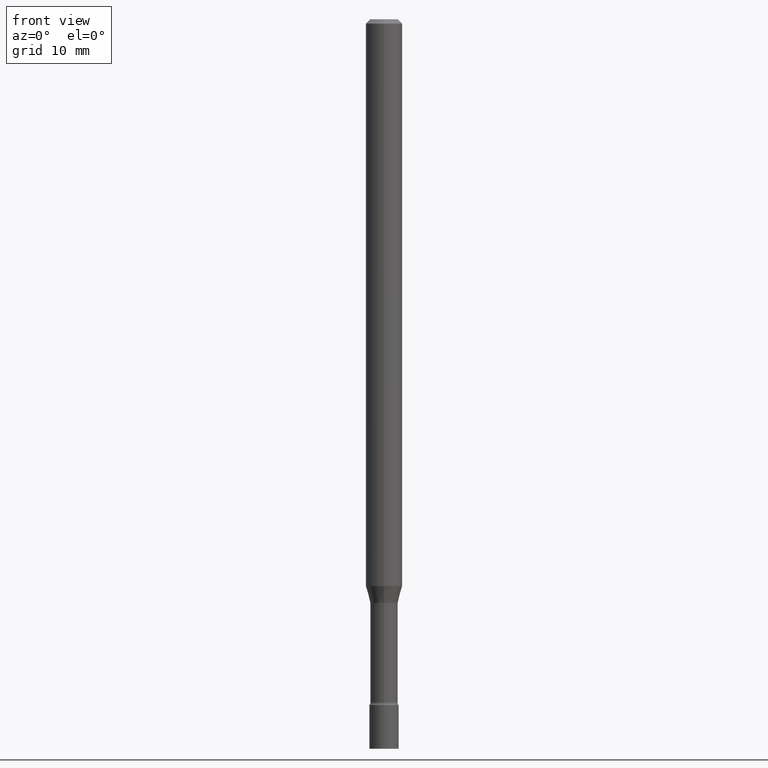
[diagram: clean part render]
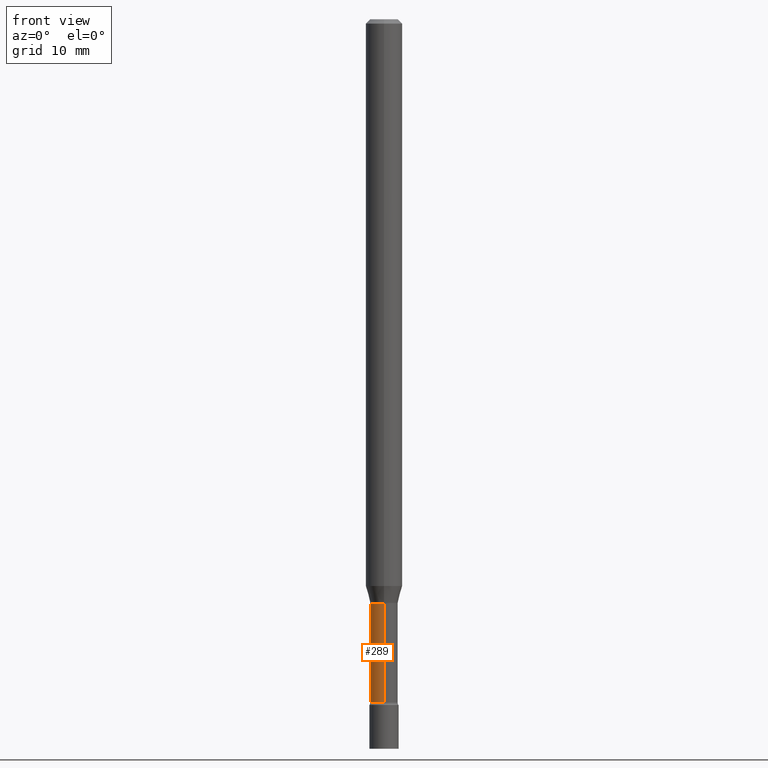
[diagram: same view with one face highlighted and labeled with its STEP entity id]
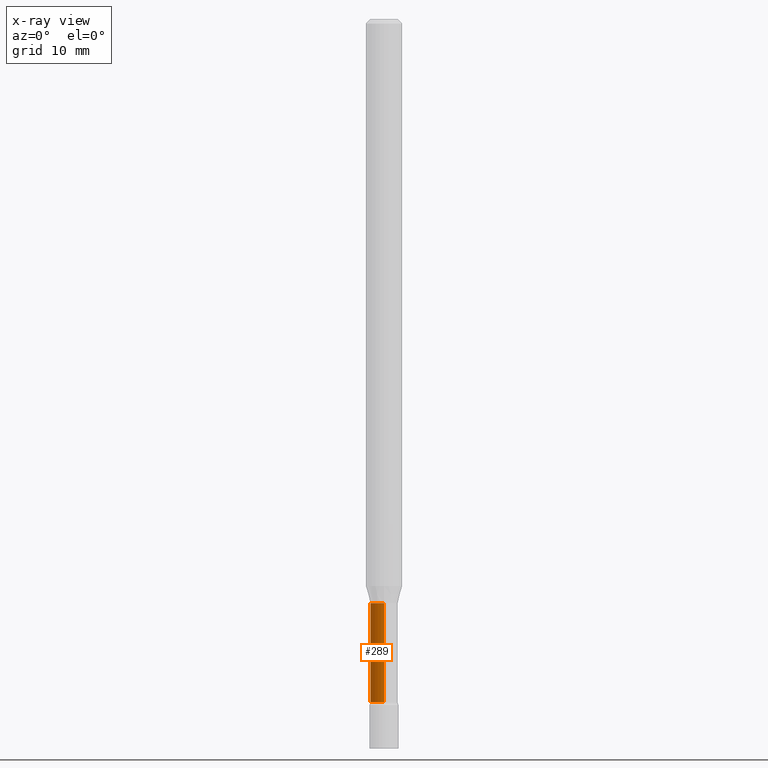
[diagram: x-ray of the same camera — body ghosted, the highlighted face saturated]
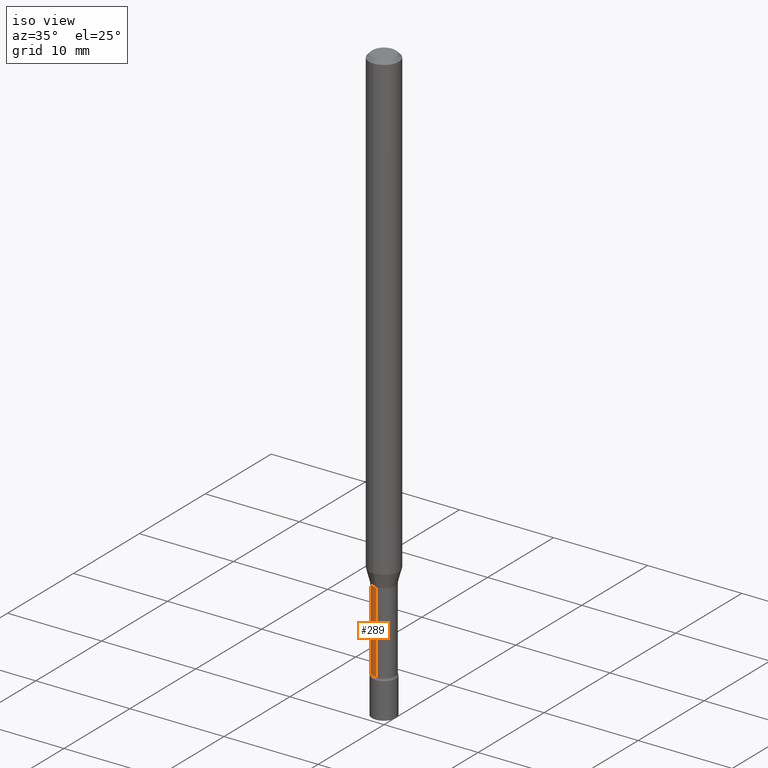
[diagram: same view with one face highlighted and labeled with its STEP entity id]
A machine part, front view. The second image highlights one B-rep face of the part: STEP entity #289.
The next image is the same camera in x-ray: the body ghosted, the highlighted face saturated — about 0% of this face is hidden behind the body in this view.
A second angle (iso view) of the same face is appended — the face is thin or edge-on in the first view.
In plain terms, the highlighted cylindrical surface (edge-blend (fillet) strip) has radius 1.1938 mm, axis along (-0, 0, 1).
Its self-contained STEP definition (entity closure, byte-faithful):
#25 = CARTESIAN_POINT ( 'NONE',  ( 4.895729259716587129E-29, -6.989911505001192506E-15, -2.001974787463811190 ) ) ;
#28 = VERTEX_POINT ( 'NONE', #511 ) ;
#32 = DIRECTION ( 'NONE',  ( -2.445450007848855714E-29, 3.491508259130634782E-15, 1.000000000000000000 ) ) ;
#37 = CARTESIAN_POINT ( 'NONE',  ( -3.281992458512547997E-16, -0.04700000000000003481, 1.641008881791399746E-16 ) ) ;
#44 = EDGE_LOOP ( 'NONE', ( #467, #381, #84, #68 ) ) ;
#68 = ORIENTED_EDGE ( 'NONE', *, *, #380, .F. ) ;
#84 = ORIENTED_EDGE ( 'NONE', *, *, #484, .T. ) ;
#96 = CARTESIAN_POINT ( 'NONE',  ( 0.000000000000000000, 0.000000000000000000, 0.000000000000000000 ) ) ;
#108 = CARTESIAN_POINT ( 'NONE',  ( 3.339550858072472854E-16, 0.04700000000000003481, -1.641008881791399746E-16 ) ) ;
#109 = LINE ( 'NONE', #108, #500 ) ;
#114 = CIRCLE ( 'NONE', #448, 0.04700000000000000705 ) ;
#150 = DIRECTION ( 'NONE',  ( -2.445450007848855434E-29, 3.491508259130634782E-15, 1.000000000000000000 ) ) ;
#172 = VERTEX_POINT ( 'NONE', #196 ) ;
#186 = CIRCLE ( 'NONE', #270, 0.04700000000000006950 ) ;
#196 = CARTESIAN_POINT ( 'NONE',  ( 3.446132268437060393E-16, 0.04699999999999190242, -2.341000000000000636 ) ) ;
#216 = DIRECTION ( 'NONE',  ( -2.445450007848855714E-29, 3.491508259130634782E-15, 1.000000000000000000 ) ) ;
#234 = LINE ( 'NONE', #37, #457 ) ;
#256 = DIRECTION ( 'NONE',  ( -6.982962677686265922E-15, -1.000000000000000000, 5.812442539711197800E-15 ) ) ;
#267 = EDGE_CURVE ( 'NONE', #172, #28, #186, .T. ) ;
#270 = AXIS2_PLACEMENT_3D ( 'NONE', #303, #216, #423 ) ;
#274 = VERTEX_POINT ( 'NONE', #395 ) ;
#289 = ADVANCED_FACE ( 'NONE', ( #498 ), #389, .T. ) ;
#303 = CARTESIAN_POINT ( 'NONE',  ( 5.724798468374171702E-29, -8.173620834624816498E-15, -2.341000000000000192 ) ) ;
#380 = EDGE_CURVE ( 'NONE', #274, #445, #114, .T. ) ;
#381 = ORIENTED_EDGE ( 'NONE', *, *, #267, .T. ) ;
#389 = CYLINDRICAL_SURFACE ( 'NONE', #499, 0.04700000000000003481 ) ;
#395 = CARTESIAN_POINT ( 'NONE',  ( 3.339550858073044285E-16, 0.04699999999999301264, -2.001974787463811190 ) ) ;
#403 = DIRECTION ( 'NONE',  ( -2.445450007848855434E-29, 3.491508259130634782E-15, 1.000000000000000000 ) ) ;
#423 = DIRECTION ( 'NONE',  ( -6.982962677686267499E-15, -1.000000000000000000, 5.812442539711189911E-15 ) ) ;
#445 = VERTEX_POINT ( 'NONE', #517 ) ;
#448 = AXIS2_PLACEMENT_3D ( 'NONE', #25, #32, #256 ) ;
#457 = VECTOR ( 'NONE', #403, 39.37007874015748143 ) ;
#463 = DIRECTION ( 'NONE',  ( -2.445450007848855714E-29, 3.491508259130634782E-15, 1.000000000000000000 ) ) ;
#467 = ORIENTED_EDGE ( 'NONE', *, *, #509, .F. ) ;
#484 = EDGE_CURVE ( 'NONE', #28, #445, #234, .T. ) ;
#498 = FACE_OUTER_BOUND ( 'NONE', #44, .T. ) ;
#499 = AXIS2_PLACEMENT_3D ( 'NONE', #96, #463, #503 ) ;
#500 = VECTOR ( 'NONE', #150, 39.37007874015748143 ) ;
#503 = DIRECTION ( 'NONE',  ( -6.982962677686267499E-15, -1.000000000000000000, 3.491508259130635176E-15 ) ) ;
#509 = EDGE_CURVE ( 'NONE', #172, #274, #109, .T. ) ;
#511 = CARTESIAN_POINT ( 'NONE',  ( -3.281992458511977552E-16, -0.04700000000000824352, -2.341000000000000192 ) ) ;
#517 = CARTESIAN_POINT ( 'NONE',  ( -3.281992458512055945E-16, -0.04700000000000699452, -2.001974787463810745 ) ) ;